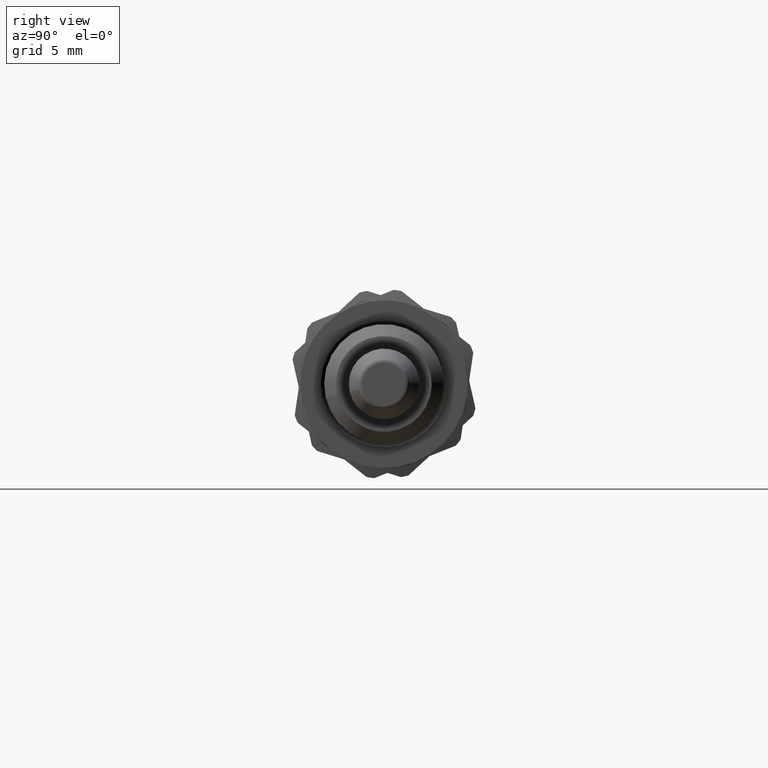
[diagram: clean part render]
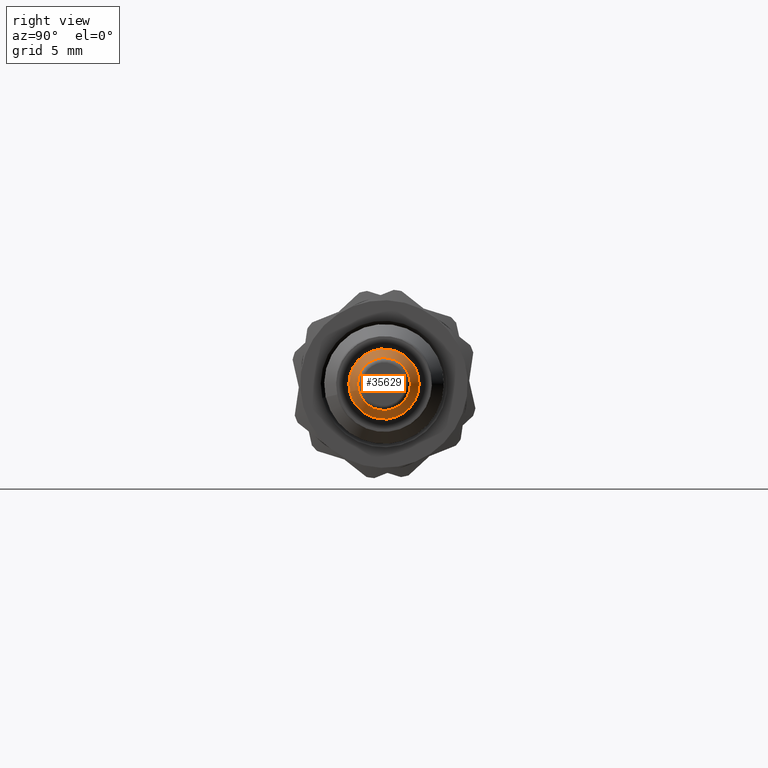
[diagram: same view with one face highlighted and labeled with its STEP entity id]
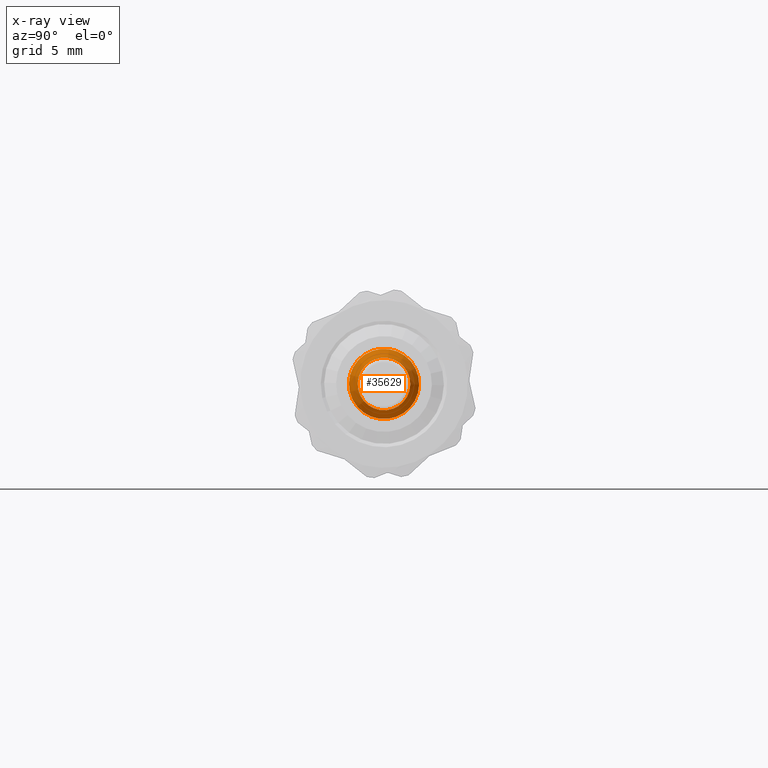
[diagram: x-ray of the same camera — body ghosted, the highlighted face saturated]
A machine part, right view. The second image highlights one B-rep face of the part: STEP entity #35629.
The next image is the same camera in x-ray: the body ghosted, the highlighted face saturated — about 0% of this face is hidden behind the body in this view.
In plain terms, the highlighted conical surface has half-angle 25 deg.
Its self-contained STEP definition (entity closure, byte-faithful):
#35526=CARTESIAN_POINT('',(27.804190095191082,-1.073098557096843,-0.241783967120806));
#35527=VERTEX_POINT('',#35526);
#35528=CARTESIAN_POINT('',(27.804190095191082,0.0,0.0));
#35529=DIRECTION('',(-1.0,0.0,0.0));
#35530=DIRECTION('',(0.0,-0.975544142815311,-0.21980360647346));
#35531=AXIS2_PLACEMENT_3D('',#35528,#35529,#35530);
#35532=CIRCLE('',#35531,1.1);
#35533=EDGE_CURVE('',#35527,#35527,#35532,.T.);
#35595=CARTESIAN_POINT('',(27.020092359909775,-1.429787521694204,-0.322150930917571));
#35596=VERTEX_POINT('',#35595);
#35597=CARTESIAN_POINT('',(27.020092359909775,3.945211E-017,-1.750985E-016));
#35598=DIRECTION('',(-1.0,0.0,0.0));
#35599=DIRECTION('',(0.0,0.975544142815311,0.21980360647346));
#35600=AXIS2_PLACEMENT_3D('',#35597,#35598,#35599);
#35601=CIRCLE('',#35600,1.465630778703665);
#35602=EDGE_CURVE('',#35596,#35596,#35601,.T.);
#35618=CARTESIAN_POINT('',(27.402095047595537,0.0,0.0));
#35619=DIRECTION('',(-1.0,0.0,0.0));
#35620=DIRECTION('',(0.0,-0.975544142815311,-0.21980360647346));
#35621=AXIS2_PLACEMENT_3D('',#35618,#35619,#35620);
#35622=CONICAL_SURFACE('',#35621,1.2875,24.999999999999972);
#35623=ORIENTED_EDGE('',*,*,#35533,.T.);
#35624=EDGE_LOOP('',(#35623));
#35625=FACE_OUTER_BOUND('',#35624,.T.);
#35626=ORIENTED_EDGE('',*,*,#35602,.F.);
#35627=EDGE_LOOP('',(#35626));
#35628=FACE_BOUND('',#35627,.T.);
#35629=ADVANCED_FACE('',(#35625,#35628),#35622,.T.);